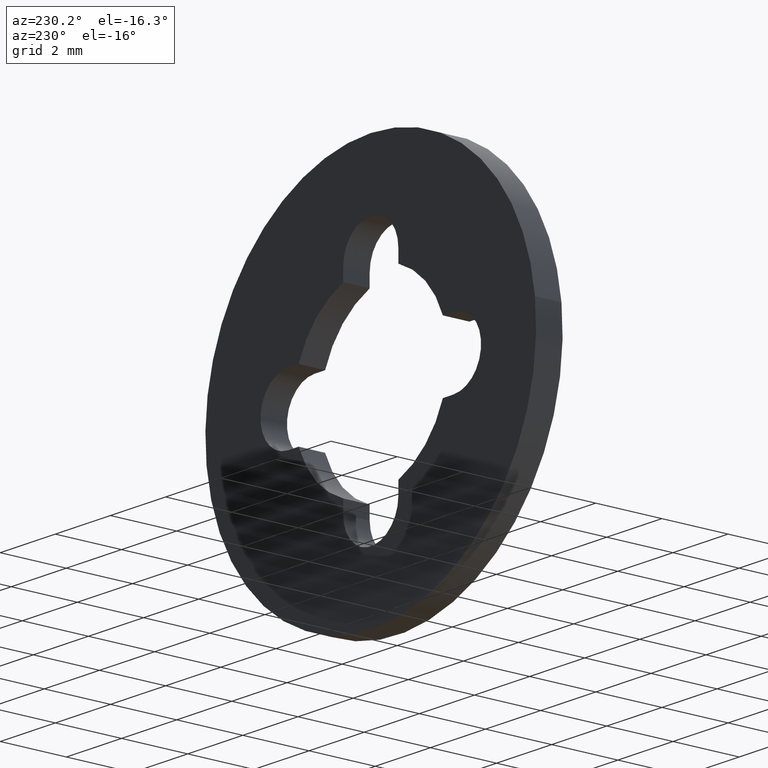
[diagram: clean part render]
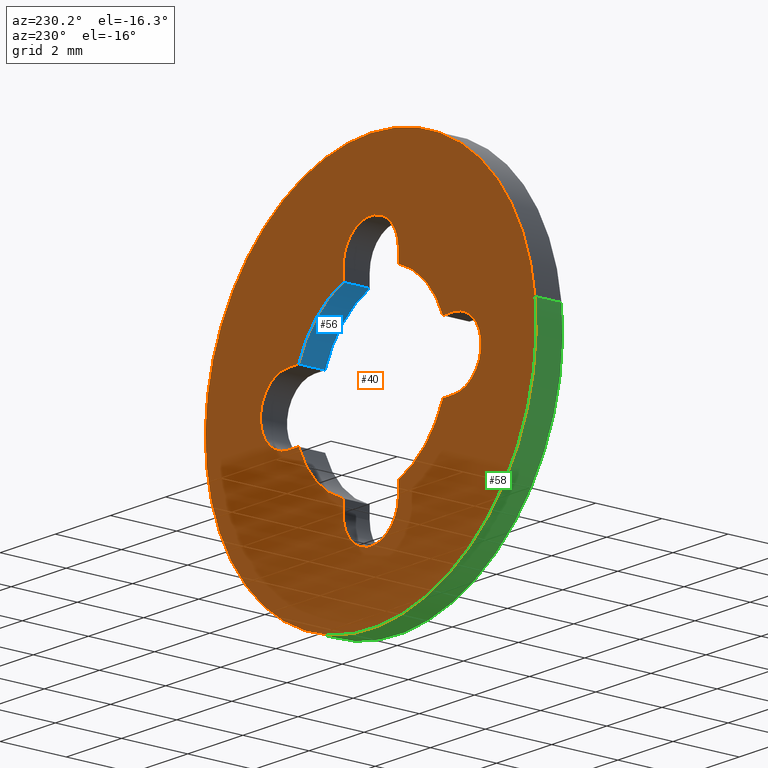
[diagram: same view with three faces highlighted in distinct colors, each labeled with its STEP entity id]
A machine part, auxiliary view with three faces highlighted in distinct colors.
Their STEP definitions:

[orange] entity #40 — the highlighted planar face has unit normal (-0, 1, 0).
#40=ADVANCED_FACE('',(#61,#62),#60,.T.);
#60=PLANE('',#265);
#61=FACE_OUTER_BOUND('',#266,.T.);
#62=FACE_BOUND('',#267,.T.);
#262=CARTESIAN_POINT('',(-1.24707658145E+01,8.00000000000E-01,7.80000000000E+00));
#263=DIRECTION('',(-0.00000000000E+00,1.00000000000E+00,0.00000000000E+00));
#264=DIRECTION('',(1.00000000000E+00,0.00000000000E+00,6.72936637806E-17));
#265=AXIS2_PLACEMENT_3D('',#262,#263,#264);
#266=EDGE_LOOP('',(#364,#365,#366));
#267=EDGE_LOOP('',(#367,#368,#369,#370,#371,#372,#373,#374,#375,#376,#377,#378,#379,#380,#381,#382));
#364=ORIENTED_EDGE('',*,*,#476,.F.);
#365=ORIENTED_EDGE('',*,*,#477,.F.);
#366=ORIENTED_EDGE('',*,*,#478,.F.);
#367=ORIENTED_EDGE('',*,*,#479,.T.);
#368=ORIENTED_EDGE('',*,*,#480,.T.);
#369=ORIENTED_EDGE('',*,*,#481,.T.);
#370=ORIENTED_EDGE('',*,*,#482,.T.);
#371=ORIENTED_EDGE('',*,*,#483,.T.);
#372=ORIENTED_EDGE('',*,*,#484,.T.);
#373=ORIENTED_EDGE('',*,*,#485,.T.);
#374=ORIENTED_EDGE('',*,*,#486,.T.);
#375=ORIENTED_EDGE('',*,*,#487,.T.);
#376=ORIENTED_EDGE('',*,*,#488,.T.);
#377=ORIENTED_EDGE('',*,*,#489,.T.);
#378=ORIENTED_EDGE('',*,*,#490,.T.);
#379=ORIENTED_EDGE('',*,*,#491,.T.);
#380=ORIENTED_EDGE('',*,*,#492,.T.);
#381=ORIENTED_EDGE('',*,*,#493,.T.);
#382=ORIENTED_EDGE('',*,*,#494,.T.);
#476=EDGE_CURVE('',#532,#533,#534,.T.);
#477=EDGE_CURVE('',#540,#532,#541,.T.);
#478=EDGE_CURVE('',#533,#540,#547,.T.);
#479=EDGE_CURVE('',#553,#554,#555,.T.);
#480=EDGE_CURVE('',#554,#561,#562,.T.);
#481=EDGE_CURVE('',#561,#568,#569,.T.);
#482=EDGE_CURVE('',#568,#575,#576,.T.);
#483=EDGE_CURVE('',#575,#582,#583,.T.);
#484=EDGE_CURVE('',#582,#589,#590,.T.);
#485=EDGE_CURVE('',#589,#596,#597,.T.);
#486=EDGE_CURVE('',#596,#603,#604,.T.);
#487=EDGE_CURVE('',#603,#610,#611,.T.);
#488=EDGE_CURVE('',#610,#617,#618,.T.);
#489=EDGE_CURVE('',#617,#624,#625,.T.);
#490=EDGE_CURVE('',#624,#631,#632,.T.);
#491=EDGE_CURVE('',#631,#638,#639,.T.);
#492=EDGE_CURVE('',#638,#645,#646,.T.);
#493=EDGE_CURVE('',#645,#652,#653,.T.);
#494=EDGE_CURVE('',#652,#553,#659,.T.);
#532=VERTEX_POINT('',#906);
#533=VERTEX_POINT('',#907);
#534=CIRCLE('',#911,6.00000000000E+00);
#540=VERTEX_POINT('',#912);
#541=CIRCLE('',#916,6.00000000000E+00);
#547=CIRCLE('',#920,6.00000000000E+00);
#553=VERTEX_POINT('',#921);
#554=VERTEX_POINT('',#922);
#555=CIRCLE('',#926,1.00000000000E+00);
#561=VERTEX_POINT('',#927);
#562=LINE('',#928,#929);
#568=VERTEX_POINT('',#931);
#569=CIRCLE('',#935,2.80000000000E+00);
#575=VERTEX_POINT('',#936);
#576=LINE('',#937,#938);
#582=VERTEX_POINT('',#940);
#583=CIRCLE('',#944,1.00000000000E+00);
#589=VERTEX_POINT('',#945);
#590=LINE('',#946,#947);
#596=VERTEX_POINT('',#949);
#597=CIRCLE('',#953,2.80000000000E+00);
#603=VERTEX_POINT('',#954);
#604=LINE('',#955,#956);
#610=VERTEX_POINT('',#958);
#611=CIRCLE('',#962,1.00000000000E+00);
#617=VERTEX_POINT('',#963);
#618=LINE('',#964,#965);
#624=VERTEX_POINT('',#967);
#625=CIRCLE('',#971,2.80000000000E+00);
#631=VERTEX_POINT('',#972);
#632=LINE('',#973,#974);
#638=VERTEX_POINT('',#976);
#639=CIRCLE('',#980,1.00000000000E+00);
#645=VERTEX_POINT('',#981);
#646=LINE('',#982,#983);
#652=VERTEX_POINT('',#985);
#653=CIRCLE('',#989,2.80000000000E+00);
#659=LINE('',#990,#991);
#906=CARTESIAN_POINT('',(5.95805716504E+00,8.00000000000E-01,-7.08205350218E-01));
#907=CARTESIAN_POINT('',(-3.23074900166E-14,8.00000000000E-01,6.00000000000E+00));
#908=CARTESIAN_POINT('',(-8.09130540347E-13,8.00000000000E-01,-1.77813319624E-12));
#909=DIRECTION('',(6.53194715796E-17,-1.00000000000E+00,2.35995732097E-16));
#910=DIRECTION('',(1.29118937764E-13,2.35995732097E-16,1.00000000000E+00));
#911=AXIS2_PLACEMENT_3D('',#908,#909,#910);
#912=CARTESIAN_POINT('',(-5.95793466626E+00,8.00000000000E-01,7.09235160270E-01));
#913=CARTESIAN_POINT('',(-8.09130540347E-13,8.00000000000E-01,-1.77813319624E-12));
#914=DIRECTION('',(6.53194715796E-17,-1.00000000000E+00,2.35995732097E-16));
#915=DIRECTION('',(1.29118937764E-13,2.35995732097E-16,1.00000000000E+00));
#916=AXIS2_PLACEMENT_3D('',#913,#914,#915);
#917=CARTESIAN_POINT('',(-8.09130540347E-13,8.00000000000E-01,-1.77813319624E-12));
#918=DIRECTION('',(6.53194715796E-17,-1.00000000000E+00,2.35995732097E-16));
#919=DIRECTION('',(1.29118937764E-13,2.35995732097E-16,1.00000000000E+00));
#920=AXIS2_PLACEMENT_3D('',#917,#918,#919);
#921=CARTESIAN_POINT('',(3.00000000000E+00,8.00000000000E-01,-1.00000000000E+00));
#922=CARTESIAN_POINT('',(3.00000000000E+00,8.00000000000E-01,1.00000000000E+00));
#923=CARTESIAN_POINT('',(3.00000000000E+00,8.00000000000E-01,0.00000000000E+00));
#924=DIRECTION('',(-3.92523114671E-17,-1.00000000000E+00,0.00000000000E+00));
#925=DIRECTION('',(-1.22460635382E-16,4.80686300248E-33,-1.00000000000E+00));
#926=AXIS2_PLACEMENT_3D('',#923,#924,#925);
#927=CARTESIAN_POINT('',(2.61533936612E+00,8.00000000000E-01,1.00000000000E+00));
#928=CARTESIAN_POINT('',(3.00000000000E+00,8.00000000000E-01,1.00000000000E+00));
#929=VECTOR('',#930,3.84660633876E-01);
#930=DIRECTION('',(-1.00000000000E+00,0.00000000000E+00,0.00000000000E+00));
#931=CARTESIAN_POINT('',(1.00000000000E+00,8.00000000000E-01,2.61533936612E+00));
#932=CARTESIAN_POINT('',(8.43769498715E-15,8.00000000000E-01,7.10542735760E-15));
#933=DIRECTION('',(4.33923761186E-18,-1.00000000000E+00,-1.13485789453E-17));
#934=DIRECTION('',(-9.34049773616E-01,-7.70371977755E-34,-3.57142857143E-01));
#935=AXIS2_PLACEMENT_3D('',#932,#933,#934);
#936=CARTESIAN_POINT('',(1.00000000000E+00,8.00000000000E-01,3.00000000000E+00));
#937=CARTESIAN_POINT('',(1.00000000000E+00,8.00000000000E-01,2.61533936612E+00));
#938=VECTOR('',#939,3.84660633876E-01);
#939=DIRECTION('',(0.00000000000E+00,0.00000000000E+00,1.00000000000E+00));
#940=CARTESIAN_POINT('',(-1.00000000000E+00,8.00000000000E-01,3.00000000000E+00));
#941=CARTESIAN_POINT('',(8.99280649946E-15,8.00000000000E-01,3.00000000000E+00));
#942=DIRECTION('',(3.48630559684E-31,-1.00000000000E+00,-3.92523114671E-17));
#943=DIRECTION('',(-1.00000000000E+00,-0.00000000000E+00,-8.88178419700E-15));
#944=AXIS2_PLACEMENT_3D('',#941,#942,#943);
#945=CARTESIAN_POINT('',(-1.00000000000E+00,8.00000000000E-01,2.61533936612E+00));
#946=CARTESIAN_POINT('',(-1.00000000000E+00,8.00000000000E-01,3.00000000000E+00));
#947=VECTOR('',#948,3.84660633876E-01);
#948=DIRECTION('',(4.67570929152E-14,0.00000000000E+00,-1.00000000000E+00));
#949=CARTESIAN_POINT('',(-2.61533936612E+00,8.00000000000E-01,1.00000000000E+00));
#950=CARTESIAN_POINT('',(5.99520433298E-15,8.00000000000E-01,-3.99680288865E-15));
#951=DIRECTION('',(1.18912921781E-16,-1.00000000000E+00,-3.79036891229E-16));
#952=DIRECTION('',(3.57142857143E-01,3.96508223080E-16,-9.34049773616E-01));
#953=AXIS2_PLACEMENT_3D('',#950,#951,#952);
#954=CARTESIAN_POINT('',(-3.00000000000E+00,8.00000000000E-01,1.00000000000E+00));
#955=CARTESIAN_POINT('',(-2.61533936612E+00,8.00000000000E-01,1.00000000000E+00));
#956=VECTOR('',#957,3.84660633876E-01);
#957=DIRECTION('',(-1.00000000000E+00,0.00000000000E+00,0.00000000000E+00));
#958=CARTESIAN_POINT('',(-3.00000000000E+00,8.00000000000E-01,-1.00000000000E+00));
#959=CARTESIAN_POINT('',(-3.00000000000E+00,8.00000000000E-01,0.00000000000E+00));
#960=DIRECTION('',(3.92523114671E-17,-1.00000000000E+00,0.00000000000E+00));
#961=DIRECTION('',(1.22460635382E-16,4.80686300248E-33,1.00000000000E+00));
#962=AXIS2_PLACEMENT_3D('',#959,#960,#961);
#963=CARTESIAN_POINT('',(-2.61533936612E+00,8.00000000000E-01,-1.00000000000E+00));
#964=CARTESIAN_POINT('',(-3.00000000000E+00,8.00000000000E-01,-1.00000000000E+00));
#965=VECTOR('',#966,3.84660633876E-01);
#966=DIRECTION('',(1.00000000000E+00,0.00000000000E+00,0.00000000000E+00));
#967=CARTESIAN_POINT('',(-1.00000000000E+00,8.00000000000E-01,-2.61533936612E+00));
#968=CARTESIAN_POINT('',(8.21565038223E-15,8.00000000000E-01,8.43769498715E-15));
#969=DIRECTION('',(3.79036891229E-16,-1.00000000000E+00,1.18912921781E-16));
#970=DIRECTION('',(9.34049773616E-01,3.96508223080E-16,3.57142857143E-01));
#971=AXIS2_PLACEMENT_3D('',#968,#969,#970);
#972=CARTESIAN_POINT('',(-1.00000000000E+00,8.00000000000E-01,-3.00000000000E+00));
#973=CARTESIAN_POINT('',(-1.00000000000E+00,8.00000000000E-01,-2.61533936612E+00));
#974=VECTOR('',#975,3.84660633876E-01);
#975=DIRECTION('',(0.00000000000E+00,0.00000000000E+00,-1.00000000000E+00));
#976=CARTESIAN_POINT('',(1.00000000000E+00,8.00000000000E-01,-2.99999982547E+00));
#977=CARTESIAN_POINT('',(9.11423602685E-15,8.00000000000E-01,-3.00000000000E+00));
#978=DIRECTION('',(3.28692027281E-31,-1.00000000000E+00,3.70074322896E-17));
#979=DIRECTION('',(-1.00000000000E+00,4.53195367205E-33,9.00424483238E-15));
#980=AXIS2_PLACEMENT_3D('',#977,#978,#979);
#981=CARTESIAN_POINT('',(1.00000000000E+00,8.00000000000E-01,-2.61533936612E+00));
#982=CARTESIAN_POINT('',(1.00000000000E+00,8.00000000000E-01,-2.99999982547E+00));
#983=VECTOR('',#984,3.84660459343E-01);
#984=DIRECTION('',(8.57213759057E-14,0.00000000000E+00,1.00000000000E+00));
#985=CARTESIAN_POINT('',(2.61533936612E+00,8.00000000000E-01,-1.00000000000E+00));
#986=CARTESIAN_POINT('',(3.99680288865E-15,8.00000000000E-01,-4.21884749358E-15));
#987=DIRECTION('',(-1.13485789453E-17,-1.00000000000E+00,-4.33923761186E-18));
#988=DIRECTION('',(-3.57142857143E-01,-0.00000000000E+00,9.34049773616E-01));
#989=AXIS2_PLACEMENT_3D('',#986,#987,#988);
#990=CARTESIAN_POINT('',(2.61533936612E+00,8.00000000000E-01,-1.00000000000E+00));
#991=VECTOR('',#992,3.84660633876E-01);
#992=DIRECTION('',(1.00000000000E+00,0.00000000000E+00,0.00000000000E+00));

[blue] entity #56 — the highlighted cylindrical surface (partial cylindrical patch) has radius 2.8 mm, axis along (0, -1, 0).
#56=ADVANCED_FACE('',(#223),#222,.F.);
#222=CYLINDRICAL_SURFACE('',#347,2.80000000000E+00);
#223=FACE_OUTER_BOUND('',#348,.T.);
#344=CARTESIAN_POINT('',(-2.43212530382E-15,-2.05000000000E-02,-2.40202448291E-15));
#345=DIRECTION('',(2.46647242216E-17,-1.00000000000E+00,9.62907109129E-17));
#346=DIRECTION('',(-3.19124677929E-01,-9.91270557701E-17,-9.47712741255E-01));
#347=AXIS2_PLACEMENT_3D('',#344,#345,#346);
#348=EDGE_LOOP('',(#458,#459,#460,#461));
#458=ORIENTED_EDGE('',*,*,#513,.T.);
#459=ORIENTED_EDGE('',*,*,#528,.F.);
#460=ORIENTED_EDGE('',*,*,#481,.F.);
#461=ORIENTED_EDGE('',*,*,#529,.T.);
#481=EDGE_CURVE('',#561,#568,#569,.T.);
#513=EDGE_CURVE('',#687,#785,#792,.T.);
#528=EDGE_CURVE('',#568,#785,#882,.T.);
#529=EDGE_CURVE('',#561,#687,#888,.T.);
#561=VERTEX_POINT('',#927);
#568=VERTEX_POINT('',#931);
#569=CIRCLE('',#935,2.80000000000E+00);
#687=VERTEX_POINT('',#1009);
#785=VERTEX_POINT('',#1072);
#792=CIRCLE('',#1079,2.80000000000E+00);
#882=LINE('',#1122,#1123);
#888=LINE('',#1125,#1126);
#927=CARTESIAN_POINT('',(2.61533936612E+00,8.00000000000E-01,1.00000000000E+00));
#931=CARTESIAN_POINT('',(1.00000000000E+00,8.00000000000E-01,2.61533936612E+00));
#932=CARTESIAN_POINT('',(8.43769498715E-15,8.00000000000E-01,7.10542735760E-15));
#933=DIRECTION('',(4.33923761186E-18,-1.00000000000E+00,-1.13485789453E-17));
#934=DIRECTION('',(-9.34049773616E-01,-7.70371977755E-34,-3.57142857143E-01));
#935=AXIS2_PLACEMENT_3D('',#932,#933,#934);
#1009=CARTESIAN_POINT('',(2.61533936612E+00,0.00000000000E+00,1.00000000000E+00));
#1072=CARTESIAN_POINT('',(1.00000000000E+00,0.00000000000E+00,2.61533936612E+00));
#1076=CARTESIAN_POINT('',(8.43769498715E-15,0.00000000000E+00,7.10542735760E-15));
#1077=DIRECTION('',(0.00000000000E+00,-1.00000000000E+00,0.00000000000E+00));
#1078=DIRECTION('',(-9.34049773616E-01,-0.00000000000E+00,-3.57142857143E-01));
#1079=AXIS2_PLACEMENT_3D('',#1076,#1077,#1078);
#1122=CARTESIAN_POINT('',(1.00000000000E+00,8.00000000000E-01,2.61533936612E+00));
#1123=VECTOR('',#1124,8.00000000000E-01);
#1124=DIRECTION('',(0.00000000000E+00,-1.00000000000E+00,0.00000000000E+00));
#1125=CARTESIAN_POINT('',(2.61533936612E+00,8.00000000000E-01,1.00000000000E+00));
#1126=VECTOR('',#1127,8.00000000000E-01);
#1127=DIRECTION('',(0.00000000000E+00,-1.00000000000E+00,0.00000000000E+00));

[green] entity #58 — the highlighted cylindrical surface (partial cylindrical patch) has radius 6 mm, axis along (0, 1, 0).
#58=ADVANCED_FACE('',(#243),#242,.T.);
#242=CYLINDRICAL_SURFACE('',#357,6.00000000000E+00);
#243=FACE_OUTER_BOUND('',#358,.T.);
#354=CARTESIAN_POINT('',(-3.50417866765E-16,8.20000000000E-01,1.32193979310E-15));
#355=DIRECTION('',(2.06303218607E-17,1.00000000000E+00,1.73560714814E-16));
#356=DIRECTION('',(9.93009526364E-01,-4.00593428433E-32,-1.18034234657E-01));
#357=AXIS2_PLACEMENT_3D('',#354,#355,#356);
#358=EDGE_LOOP('',(#466,#467,#468,#469));
#466=ORIENTED_EDGE('',*,*,#477,.T.);
#467=ORIENTED_EDGE('',*,*,#530,.F.);
#468=ORIENTED_EDGE('',*,*,#496,.F.);
#469=ORIENTED_EDGE('',*,*,#531,.T.);
#477=EDGE_CURVE('',#540,#532,#541,.T.);
#496=EDGE_CURVE('',#666,#673,#674,.T.);
#530=EDGE_CURVE('',#673,#532,#894,.T.);
#531=EDGE_CURVE('',#666,#540,#900,.T.);
#532=VERTEX_POINT('',#906);
#540=VERTEX_POINT('',#912);
#541=CIRCLE('',#916,6.00000000000E+00);
#666=VERTEX_POINT('',#994);
#673=VERTEX_POINT('',#999);
#674=CIRCLE('',#1003,6.00000000000E+00);
#894=(BOUNDED_CURVE() B_SPLINE_CURVE(1,(#1128,#1129),.UNSPECIFIED.,.F.,.F.) B_SPLINE_CURVE_WITH_KNOTS((2,2),(8.33333730703E-02,9.16666640476E-01),.UNSPECIFIED.) CURVE() GEOMETRIC_REPRESENTATION_ITEM() RATIONAL_B_SPLINE_CURVE((1.00000000000E+00,1.00000000000E+00)) REPRESENTATION_ITEM('') );
#900=(BOUNDED_CURVE() B_SPLINE_CURVE(1,(#1130,#1131),.UNSPECIFIED.,.F.,.F.) B_SPLINE_CURVE_WITH_KNOTS((2,2),(8.33333333349E-02,9.16666666667E-01),.UNSPECIFIED.) CURVE() GEOMETRIC_REPRESENTATION_ITEM() RATIONAL_B_SPLINE_CURVE((7.50000000000E-01,7.50000000000E-01)) REPRESENTATION_ITEM('') );
#906=CARTESIAN_POINT('',(5.95805716504E+00,8.00000000000E-01,-7.08205350218E-01));
#912=CARTESIAN_POINT('',(-5.95793466626E+00,8.00000000000E-01,7.09235160270E-01));
#913=CARTESIAN_POINT('',(-8.09130540347E-13,8.00000000000E-01,-1.77813319624E-12));
#914=DIRECTION('',(6.53194715796E-17,-1.00000000000E+00,2.35995732097E-16));
#915=DIRECTION('',(1.29118937764E-13,2.35995732097E-16,1.00000000000E+00));
#916=AXIS2_PLACEMENT_3D('',#913,#914,#915);
#994=CARTESIAN_POINT('',(-5.95793466626E+00,4.40724156108E-14,7.09235160270E-01));
#999=CARTESIAN_POINT('',(5.95805716504E+00,8.78683073894E-14,-7.08205350218E-01));
#1000=CARTESIAN_POINT('',(-8.28226376370E-13,6.59062363496E-14,-1.82343029564E-12));
#1001=DIRECTION('',(1.82315375826E-14,-1.00000000000E+00,1.22369129318E-13));
#1002=DIRECTION('',(1.40359945888E-13,1.22369129318E-13,1.00000000000E+00));
#1003=AXIS2_PLACEMENT_3D('',#1000,#1001,#1002);
#1128=CARTESIAN_POINT('',(5.95805715818E+00,3.81460480425E-08,-7.08205407941E-01));
#1129=CARTESIAN_POINT('',(5.95805715818E+00,7.99999974857E-01,-7.08205407941E-01));
#1130=CARTESIAN_POINT('',(-5.95805715818E+00,5.90823686271E-14,7.08205407941E-01));
#1131=CARTESIAN_POINT('',(-5.95805715818E+00,8.00000000000E-01,7.08205407941E-01));